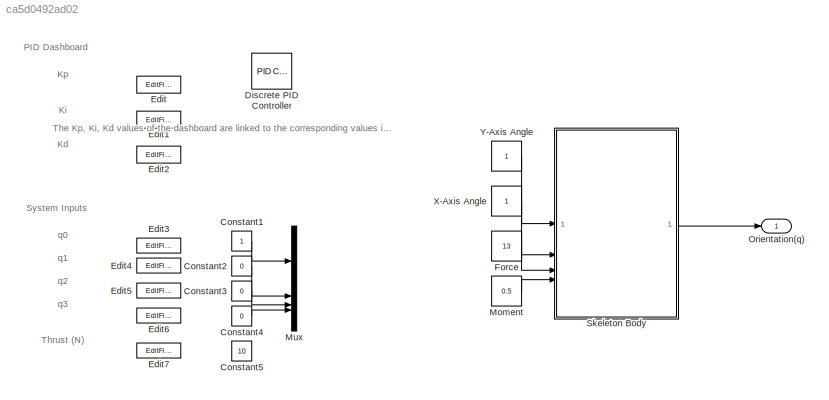
MODEL slx_ca5d0492ad02
KIND model
CONFIG AbsTol = auto
CONFIG EnableMultiTasking = off
CONFIG FixedStep = auto
CONFIG MaxStep = auto
CONFIG MinStep = auto
CONFIG RelTol = 1e-3
CONFIG SampleTimeConstraint = Unconstrained
CONFIG SolverName = VariableStepAuto
CONFIG StartTime = 0.0
CONFIG StopTime = 5
BLOCK [Constant] Constant1
BLOCK [Constant] Constant2
  Value = 0
BLOCK [Constant] Constant3
  Value = 0
BLOCK [Constant] Constant4
  Value = 0
BLOCK [Constant] Constant5
  Value = 10
BLOCK [Reference] Discrete PID Controller  REF=slpidlib/PID Controller
  LibrarySourceBlock = simulink/Continuous/PID Controller
  SourceBlock = slpidlib/PID Controller
  SourceType = PID 1dof
BLOCK [EditField] Edit
  Alignment = Center
  LabelPosition = Hide
  ShowInitialText = on
BLOCK [EditField] Edit1
  Alignment = Center
  LabelPosition = Hide
  ShowInitialText = on
BLOCK [EditField] Edit2
  Alignment = Center
  LabelPosition = Hide
  ShowInitialText = on
BLOCK [EditField] Edit3
  Alignment = Center
  LabelPosition = Hide
  ShowInitialText = on
BLOCK [EditField] Edit4
  Alignment = Center
  LabelPosition = Hide
  ShowInitialText = on
BLOCK [EditField] Edit5
  Alignment = Center
  LabelPosition = Hide
  ShowInitialText = on
BLOCK [EditField] Edit6
  Alignment = Center
  LabelPosition = Hide
  ShowInitialText = on
BLOCK [EditField] Edit7
  Alignment = Center
  LabelPosition = Hide
  ShowInitialText = on
BLOCK [Constant] Force
  Value = 13
BLOCK [Constant] Moment
  Value = 0.5
BLOCK [Mux] Mux
  DisplayOption = bar
BLOCK [Outport] Orientation(q)
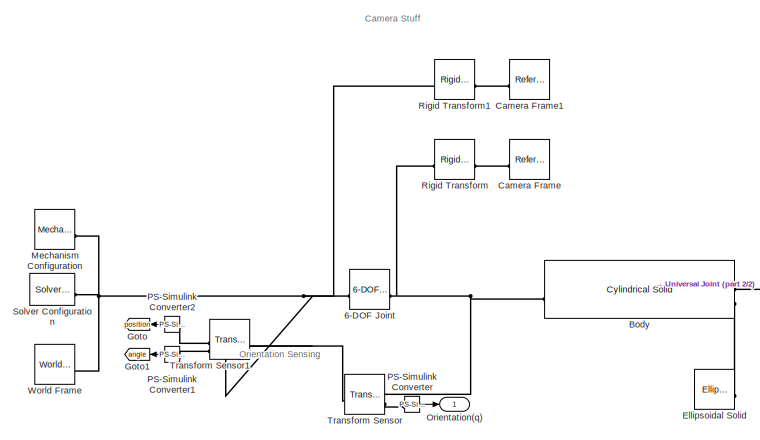
[diagram: Skeleton Body - part 1/2, left side, full height]
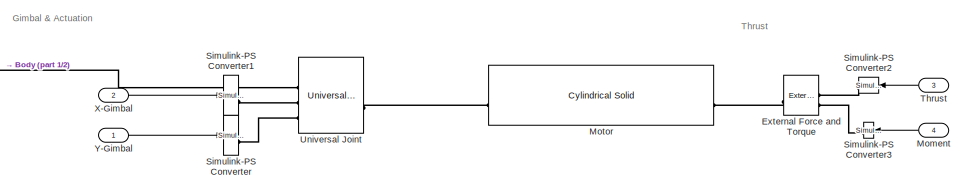
[diagram: Skeleton Body - part 2/2, bottom right region]
BLOCK [SubSystem] Skeleton Body
  NameLocation = top
BLOCK [Reference] Skeleton Body/6-DOF Joint  REF=sm_lib/Joints/6-DOF Joint
  SourceBlock = sm_lib/Joints/6-DOF Joint
  SourceType = 6-DOF Joint
BLOCK [Reference] Skeleton Body/Body  REF=sm_lib/Body Elements/Cylindrical Solid
  NameLocation = top
  SourceBlock = sm_lib/Body Elements/Cylindrical Solid
  SourceType = Cylindrical Solid
BLOCK [Reference] Skeleton Body/Camera Frame  REF=sm_lib/Frames and
Transforms/Reference
Frame
  NameLocation = top
  SourceBlock = sm_lib/Frames and\nTransforms/Reference\nFrame
  SourceType = Reference\nFrame
BLOCK [Reference] Skeleton Body/Camera Frame1  REF=sm_lib/Frames and
Transforms/Reference
Frame
  NameLocation = top
  SourceBlock = sm_lib/Frames and\nTransforms/Reference\nFrame
  SourceType = Reference\nFrame
BLOCK [Reference] Skeleton Body/Ellipsoidal Solid  REF=sm_lib/Body Elements/Ellipsoidal Solid
  SourceBlock = sm_lib/Body Elements/Ellipsoidal Solid
  SourceType = Ellipsoidal Solid
BLOCK [Reference] Skeleton Body/External Force and Torque  REF=sm_lib/Forces and
Torques/External Force
and Torque
  NameLocation = top
  SourceBlock = sm_lib/Forces and\nTorques/External Force\nand Torque
  SourceType = External Force\nand Torque
BLOCK [Goto] Skeleton Body/Goto
  GotoTag = position
  TagVisibility = global
BLOCK [Goto] Skeleton Body/Goto1
  GotoTag = angle
  TagVisibility = global
BLOCK [Reference] Skeleton Body/Mechanism Configuration  REF=sm_lib/Utilities/Mechanism
Configuration
  SourceBlock = sm_lib/Utilities/Mechanism\nConfiguration
  SourceType = Mechanism\nConfiguration
BLOCK [Inport] Skeleton Body/Moment
  NameLocation = top
  Port = 4
BLOCK [Reference] Skeleton Body/Motor  REF=sm_lib/Body Elements/Cylindrical Solid
  SourceBlock = sm_lib/Body Elements/Cylindrical Solid
  SourceType = Cylindrical Solid
BLOCK [Outport] Skeleton Body/Orientation(q)
BLOCK [Reference] Skeleton Body/PS-Simulink Converter  REF=nesl_utility/PS-Simulink
Converter
  SourceBlock = nesl_utility/PS-Simulink\nConverter
  SourceType = PS-Simulink\nConverter
BLOCK [Reference] Skeleton Body/PS-Simulink Converter1  REF=nesl_utility/PS-Simulink
Converter
  SourceBlock = nesl_utility/PS-Simulink\nConverter
  SourceType = PS-Simulink\nConverter
BLOCK [Reference] Skeleton Body/PS-Simulink Converter2  REF=nesl_utility/PS-Simulink
Converter
  SourceBlock = nesl_utility/PS-Simulink\nConverter
  SourceType = PS-Simulink\nConverter
BLOCK [Reference] Skeleton Body/Rigid Transform  REF=sm_lib/Frames and
Transforms/Rigid
Transform
  SourceBlock = sm_lib/Frames and\nTransforms/Rigid\nTransform
  SourceType = Rigid\nTransform
BLOCK [Reference] Skeleton Body/Rigid Transform1  REF=sm_lib/Frames and
Transforms/Rigid
Transform
  SourceBlock = sm_lib/Frames and\nTransforms/Rigid\nTransform
  SourceType = Rigid\nTransform
BLOCK [Reference] Skeleton Body/Simulink-PS Converter  REF=nesl_utility/Simulink-PS
Converter
  SourceBlock = nesl_utility/Simulink-PS\nConverter
  SourceType = Simulink-PS\nConverter
BLOCK [Reference] Skeleton Body/Simulink-PS Converter1  REF=nesl_utility/Simulink-PS
Converter
  SourceBlock = nesl_utility/Simulink-PS\nConverter
  SourceType = Simulink-PS\nConverter
BLOCK [Reference] Skeleton Body/Simulink-PS Converter2  REF=nesl_utility/Simulink-PS
Converter
  NameLocation = top
  SourceBlock = nesl_utility/Simulink-PS\nConverter
  SourceType = Simulink-PS\nConverter
BLOCK [Reference] Skeleton Body/Simulink-PS Converter3  REF=nesl_utility/Simulink-PS
Converter
  NameLocation = top
  SourceBlock = nesl_utility/Simulink-PS\nConverter
  SourceType = Simulink-PS\nConverter
BLOCK [Reference] Skeleton Body/Solver Configuration  REF=nesl_utility/Solver
Configuration
  SourceBlock = nesl_utility/Solver\nConfiguration
  SourceType = Solver\nConfiguration
BLOCK [Inport] Skeleton Body/Thrust
  NameLocation = top
  Port = 3
BLOCK [Reference] Skeleton Body/Transform Sensor  REF=sm_lib/Frames and
Transforms/Transform
Sensor
  NameLocation = top
  SourceBlock = sm_lib/Frames and\nTransforms/Transform\nSensor
  SourceType = Transform\nSensor
BLOCK [Reference] Skeleton Body/Transform Sensor1  REF=sm_lib/Frames and
Transforms/Transform
Sensor
  SourceBlock = sm_lib/Frames and\nTransforms/Transform\nSensor
  SourceType = Transform\nSensor
BLOCK [Reference] Skeleton Body/Universal Joint  REF=sm_lib/Joints/Universal
Joint
  SourceBlock = sm_lib/Joints/Universal\nJoint
  SourceType = Universal\nJoint
BLOCK [Reference] Skeleton Body/World Frame  REF=sm_lib/Frames and
Transforms/World Frame
  SourceBlock = sm_lib/Frames and\nTransforms/World Frame
  SourceType = World Frame
BLOCK [Inport] Skeleton Body/X-Gimbal
  Port = 2
BLOCK [Inport] Skeleton Body/Y-Gimbal
BLOCK [Constant] X-Axis Angle
BLOCK [Constant] Y-Axis Angle
ANNOTATION (root): Kd
ANNOTATION (root): Ki
ANNOTATION (root): Kp
ANNOTATION (root): PID Dashboard
ANNOTATION (root): System Inputs
ANNOTATION (root): The Kp, Ki, Kd values of the dashboard are linked to the corresponding values in the PID controller block.
ANNOTATION (root): Thrust (N)
ANNOTATION (root): q0
ANNOTATION (root): q1
ANNOTATION (root): q2
ANNOTATION (root): q3
ANNOTATION Skeleton Body: Camera Stuff
ANNOTATION Skeleton Body: Gimbal & Actuation
ANNOTATION Skeleton Body: Orientation Sensing
ANNOTATION Skeleton Body: Thrust
LINE Constant1:1 -> Mux:1
LINE Constant2:1 -> Mux:2
LINE Constant3:1 -> Mux:3
LINE Constant4:1 -> Mux:4
LINE Force:1 -> Skeleton Body:3
LINE Moment:1 -> Skeleton Body:4
LINE Skeleton Body/Moment:1 -> Skeleton Body/Simulink-PS Converter3:1
LINE Skeleton Body/PS-Simulink Converter1:1 -> Skeleton Body/Goto1:1
LINE Skeleton Body/PS-Simulink Converter2:1 -> Skeleton Body/Goto:1
LINE Skeleton Body/PS-Simulink Converter:1 -> Skeleton Body/Orientation(q):1
LINE Skeleton Body/Thrust:1 -> Skeleton Body/Simulink-PS Converter2:1
LINE Skeleton Body/X-Gimbal:1 -> Skeleton Body/Simulink-PS Converter1:1
LINE Skeleton Body/Y-Gimbal:1 -> Skeleton Body/Simulink-PS Converter:1
LINE Skeleton Body:1 -> Orientation(q):1
LINE X-Axis Angle:1 -> Skeleton Body:2
LINE Y-Axis Angle:1 -> Skeleton Body:1
PNET net1: Skeleton Body/6-DOF Joint:LConn1 -- Skeleton Body/Mechanism Configuration:RConn1 -- Skeleton Body/Rigid Transform1:LConn1 -- Skeleton Body/Solver Configuration:RConn1 -- Skeleton Body/Transform Sensor1:LConn1 -- Skeleton Body/Transform Sensor:LConn1 -- Skeleton Body/World Frame:RConn1
PNET net2: Skeleton Body/6-DOF Joint:RConn1 -- Skeleton Body/Body:RConn1 -- Skeleton Body/Rigid Transform:LConn1 -- Skeleton Body/Transform Sensor:RConn1
PLINE Skeleton Body/Body:LConn1 -- Skeleton Body/Universal Joint:LConn1
PLINE Skeleton Body/Body:LConn2 -- Skeleton Body/Ellipsoidal Solid:RConn1
PLINE Skeleton Body/Camera Frame1:RConn1 -- Skeleton Body/Rigid Transform1:RConn1
PLINE Skeleton Body/Camera Frame:RConn1 -- Skeleton Body/Rigid Transform:RConn1
PLINE Skeleton Body/External Force and Torque:LConn1 -- Skeleton Body/Simulink-PS Converter2:RConn1
PLINE Skeleton Body/External Force and Torque:LConn2 -- Skeleton Body/Simulink-PS Converter3:RConn1
PLINE Skeleton Body/External Force and Torque:RConn1 -- Skeleton Body/Motor:RConn1
PLINE Skeleton Body/Motor:LConn1 -- Skeleton Body/Universal Joint:RConn1
PLINE Skeleton Body/PS-Simulink Converter1:LConn1 -- Skeleton Body/Transform Sensor1:RConn3
PLINE Skeleton Body/PS-Simulink Converter2:LConn1 -- Skeleton Body/Transform Sensor1:RConn2
PLINE Skeleton Body/PS-Simulink Converter:LConn1 -- Skeleton Body/Transform Sensor:RConn2
PLINE Skeleton Body/Simulink-PS Converter1:RConn1 -- Skeleton Body/Universal Joint:LConn2
PLINE Skeleton Body/Simulink-PS Converter:RConn1 -- Skeleton Body/Universal Joint:LConn3
note: PNET lines group multi-terminal physical nets as a canonical sorted terminal list (undirected conserving connections); 2-terminal nets keep the pairwise PLINE form
